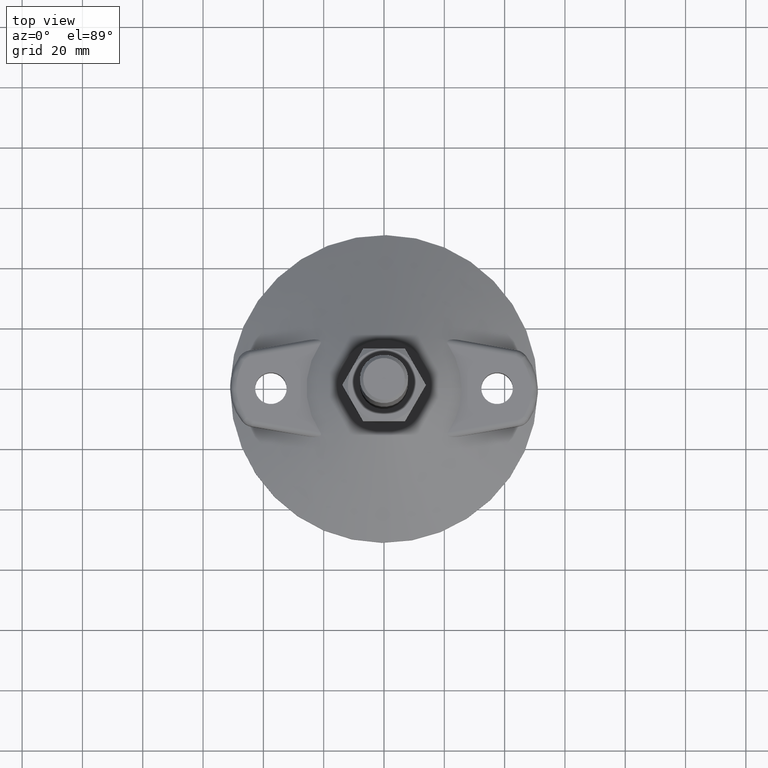
[diagram: clean part render]
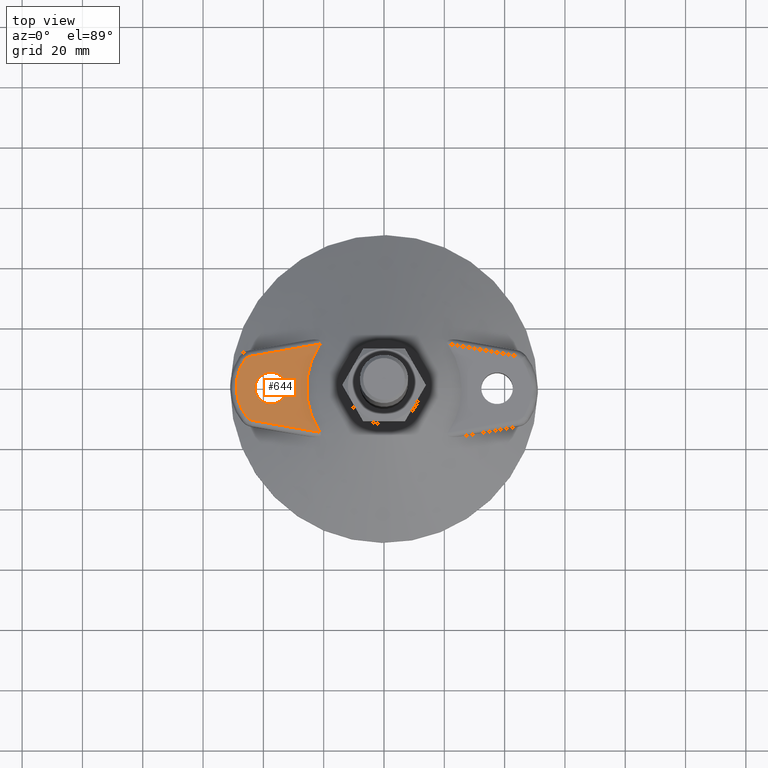
[diagram: same view with one face highlighted and labeled with its STEP entity id]
A machine part, top view. The second image highlights one B-rep face of the part: STEP entity #644.
In plain terms, the highlighted planar face has unit normal (-0, -0, 1).
Its self-contained STEP definition (entity closure, byte-faithful):
#311=CARTESIAN_POINT('',(-21.143162613054074,14.649210803180722,18.000001886154674));
#312=VERTEX_POINT('',#311);
#331=CARTESIAN_POINT('',(-21.143162613054756,-14.649211732323238,18.000001129975470));
#332=VERTEX_POINT('',#331);
#333=CARTESIAN_POINT('',(-3.944305E-031,-0.000000464571713,18.000001508065999));
#334=DIRECTION('',(1.381194E-016,0.000000025809560,-1.000000000000000));
#335=DIRECTION('',(1.0,-3.535833E-014,1.381185E-016));
#336=AXIS2_PLACEMENT_3D('',#333,#334,#335);
#337=CIRCLE('',#336,25.722222222220353);
#338=EDGE_CURVE('',#332,#312,#337,.T.);
#475=CARTESIAN_POINT('',(-43.598805130890014,-10.689676087285989,18.000001232168874));
#476=VERTEX_POINT('',#475);
#477=CARTESIAN_POINT('',(-43.598805130890582,-10.689676087285079,18.000001232168874));
#478=DIRECTION('',(0.984807753012212,-0.173648177666911,-4.481762E-009));
#479=VECTOR('',#478,22.802056999603433);
#480=LINE('',#477,#479);
#481=EDGE_CURVE('',#476,#332,#480,.T.);
#506=CARTESIAN_POINT('',(-44.370267483217845,10.553645530827453,18.000001780449505));
#507=VERTEX_POINT('',#506);
#515=CARTESIAN_POINT('',(-21.143162613054074,14.649210803180722,18.000001886154674));
#516=DIRECTION('',(-0.984807753012220,-0.173648177666865,-4.481801E-009));
#517=VECTOR('',#516,23.585420402225008);
#518=LINE('',#515,#517);
#519=EDGE_CURVE('',#312,#507,#518,.T.);
#589=CARTESIAN_POINT('',(-14.844926932191584,20.653254809009013,18.000002041116495));
#590=DIRECTION('',(-1.977162E-014,-0.000000025809554,1.000000000000000));
#591=DIRECTION('',(-1.0,0.0,0.0));
#592=AXIS2_PLACEMENT_3D('',#589,#590,#591);
#593=PLANE('',#592);
#594=ORIENTED_EDGE('',*,*,#519,.T.);
#595=CARTESIAN_POINT('',(-46.348458853350962,9.258836605806209,18.000001747031028));
#596=VERTEX_POINT('',#595);
#597=CARTESIAN_POINT('',(-43.849322950217349,7.599222271790495,18.000001704197171));
#598=DIRECTION('',(-1.977162E-014,-0.000000025809554,1.000000000000000));
#599=DIRECTION('',(-0.173648177666837,0.984807753012224,0.000000025417445));
#600=AXIS2_PLACEMENT_3D('',#597,#598,#599);
#601=CIRCLE('',#600,3.000000000000390);
#602=EDGE_CURVE('',#507,#596,#601,.T.);
#603=ORIENTED_EDGE('',*,*,#602,.T.);
#604=CARTESIAN_POINT('',(-45.397812276405716,-9.637310716252614,18.000001259329917));
#605=VERTEX_POINT('',#604);
#606=CARTESIAN_POINT('',(-33.089507085860077,0.453894713772566,18.000001519779669));
#607=DIRECTION('',(-1.977162E-014,-0.000000025809554,1.000000000000000));
#608=DIRECTION('',(-0.833045301044058,0.553204778005770,0.000000014277952));
#609=AXIS2_PLACEMENT_3D('',#606,#607,#608);
#610=CIRCLE('',#609,15.916243391409303);
#611=EDGE_CURVE('',#596,#605,#610,.T.);
#612=ORIENTED_EDGE('',*,*,#611,.T.);
#613=CARTESIAN_POINT('',(-43.077860597889185,-7.735252828249031,18.000001308421226));
#614=DIRECTION('',(-1.977162E-014,-0.000000025809554,1.000000000000000));
#615=DIRECTION('',(-1.0,-1.224642E-016,-1.977162E-014));
#616=AXIS2_PLACEMENT_3D('',#613,#614,#615);
#617=CIRCLE('',#616,3.0);
#618=EDGE_CURVE('',#605,#476,#617,.T.);
#619=ORIENTED_EDGE('',*,*,#618,.T.);
#620=ORIENTED_EDGE('',*,*,#481,.T.);
#621=ORIENTED_EDGE('',*,*,#338,.T.);
#622=EDGE_LOOP('',(#594,#603,#612,#619,#620,#621));
#623=FACE_OUTER_BOUND('',#622,.T.);
#624=CARTESIAN_POINT('',(-32.250000000000455,-0.000000464571712,18.000001508064848));
#625=VERTEX_POINT('',#624);
#626=CARTESIAN_POINT('',(-42.749999999999773,-0.000000464571713,18.000001508064642));
#627=VERTEX_POINT('',#626);
#628=CARTESIAN_POINT('',(-37.500000000000114,-0.000000464571713,18.000001508064742));
#629=DIRECTION('',(-1.977162E-014,-0.000000025809554,1.000000000000000));
#630=DIRECTION('',(-1.0,-1.224642E-016,-1.977162E-014));
#631=AXIS2_PLACEMENT_3D('',#628,#629,#630);
#632=CIRCLE('',#631,5.249999999999659);
#633=EDGE_CURVE('',#625,#627,#632,.T.);
#634=ORIENTED_EDGE('',*,*,#633,.F.);
#635=CARTESIAN_POINT('',(-37.500000000000114,-0.000000464571713,18.000001508064742));
#636=DIRECTION('',(-1.977162E-014,-0.000000025809554,1.000000000000000));
#637=DIRECTION('',(-1.0,-1.224642E-016,-1.977162E-014));
#638=AXIS2_PLACEMENT_3D('',#635,#636,#637);
#639=CIRCLE('',#638,5.249999999999659);
#640=EDGE_CURVE('',#627,#625,#639,.T.);
#641=ORIENTED_EDGE('',*,*,#640,.F.);
#642=EDGE_LOOP('',(#634,#641));
#643=FACE_BOUND('',#642,.T.);
#644=ADVANCED_FACE('',(#623,#643),#593,.T.);